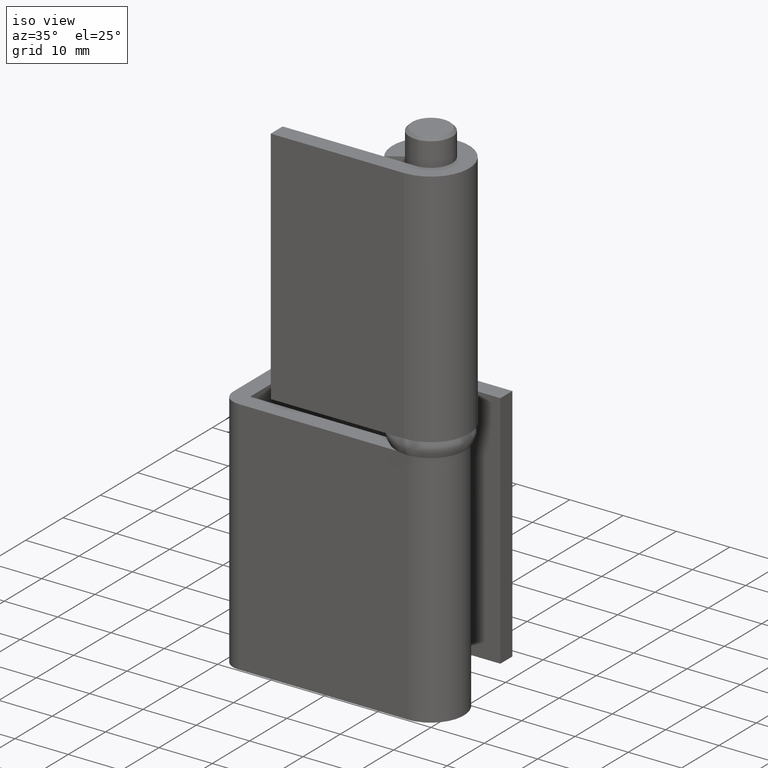
[diagram: clean part render]
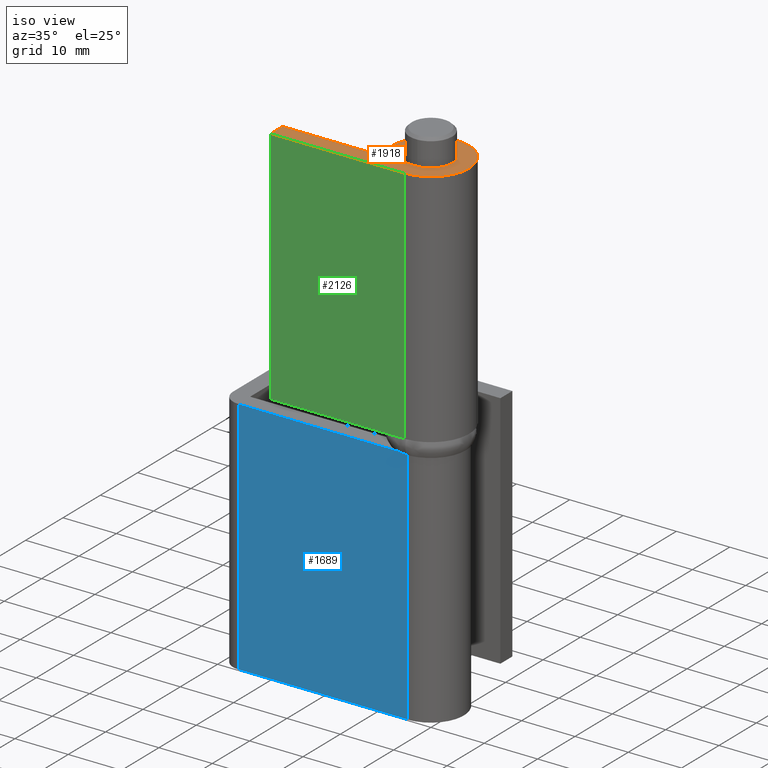
[diagram: same view with three faces highlighted in distinct colors, each labeled with its STEP entity id]
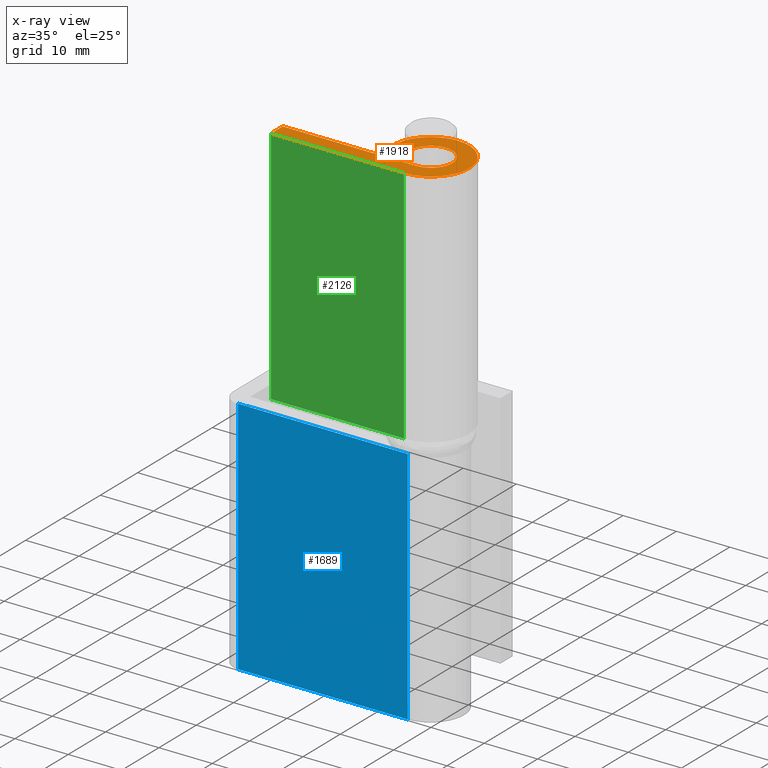
[diagram: x-ray of the same camera — body ghosted, the three highlighted faces saturated]
A machine part, iso view with three faces highlighted in distinct colors.
The next image is the same camera in x-ray (body ghosted, the three faces saturated) — at least one of them is partly hidden behind the body in this view.
Their STEP definitions:

[orange] entity #1918 — the highlighted face is a freeform B-spline surface patch.
#1841=CARTESIAN_POINT('',(-26.608327109650130,7.914607817437846,95.0));
#1842=CARTESIAN_POINT('',(8.807070156621938,7.914607817437846,95.0));
#1843=CARTESIAN_POINT('',(-26.608327109650130,-7.919039230234372,95.0));
#1844=CARTESIAN_POINT('',(8.807070156621938,-7.919039230234372,95.0));
#1845=B_SPLINE_SURFACE_WITH_KNOTS('',1,1,((#1841,#1843),(#1842,#1844)),.UNSPECIFIED.,.F.,.F.,.U.,(2,2),(2,2),(0.0,35.415397266272073),(0.0,15.833647047672221),.UNSPECIFIED.);
#1846=CARTESIAN_POINT('',(0.016099679385885,-7.199981999999999,95.0));
#1847=VERTEX_POINT('',#1846);
#1848=CARTESIAN_POINT('',(-25.0,-7.199981999999999,95.0));
#1849=VERTEX_POINT('',#1848);
#1850=CARTESIAN_POINT('',(0.016099679385885,-7.199981999999999,95.0));
#1851=CARTESIAN_POINT('',(-25.0,-7.199981999999999,95.0));
#1852=QUASI_UNIFORM_CURVE('',1,(#1850,#1851),.UNSPECIFIED.,.F.,.U.);
#1853=EDGE_CURVE('',#1847,#1849,#1852,.T.);
#1854=ORIENTED_EDGE('',*,*,#1853,.F.);
#1855=CARTESIAN_POINT('',(-6.019759131393890,-3.950000000000000,95.0));
#1856=VERTEX_POINT('',#1855);
#1857=CARTESIAN_POINT('',(0.016099679385891,-7.199981999999977,95.0));
#1858=CARTESIAN_POINT('',(5.619711671385884,-7.187451919164481,94.999999999999986));
#1859=CARTESIAN_POINT('',(6.983507910902554,-1.752317681917705,95.0));
#1860=CARTESIAN_POINT('',(8.347304150419223,3.682816555329068,94.999999999999986));
#1861=CARTESIAN_POINT('',(3.413440706091469,6.339433929460719,95.0));
#1862=CARTESIAN_POINT('',(-1.520422738236291,8.996051303592372,94.999999999999986));
#1863=CARTESIAN_POINT('',(-5.307196678162781,4.865558901020306,95.0));
#1864=CARTESIAN_POINT('',(-9.093970618089267,0.735066498448246,94.999999999999986));
#1865=CARTESIAN_POINT('',(-6.019759131393885,-3.949999999999992,95.0));
#1873=(BOUNDED_CURVE()B_SPLINE_CURVE(2,(#1857,#1858,#1859,#1860,#1861,#1862,#1863,#1864,#1865),.UNSPECIFIED.,.F.,.U.)B_SPLINE_CURVE_WITH_KNOTS((3,2,2,2,3),(0.0,0.250000000000000,0.500000000000000,0.750000000000000,1.0),.UNSPECIFIED.)CURVE()GEOMETRIC_REPRESENTATION_ITEM()RATIONAL_B_SPLINE_CURVE((1.0,0.789159578012154,1.0,0.789159578012154,1.0,0.789159578012154,1.0,0.789159578012154,1.0))REPRESENTATION_ITEM(''));
#1874=EDGE_CURVE('',#1847,#1856,#1873,.T.);
#1875=ORIENTED_EDGE('',*,*,#1874,.T.);
#1876=CARTESIAN_POINT('',(-3.344310628552160,-2.194444444444440,95.0));
#1877=VERTEX_POINT('',#1876);
#1878=CARTESIAN_POINT('',(-3.344310628552160,-2.194444444444440,95.0));
#1879=CARTESIAN_POINT('',(-6.019759131393890,-3.950000000000000,95.0));
#1880=QUASI_UNIFORM_CURVE('',1,(#1878,#1879),.UNSPECIFIED.,.F.,.U.);
#1881=EDGE_CURVE('',#1877,#1856,#1880,.T.);
#1882=ORIENTED_EDGE('',*,*,#1881,.F.);
#1883=CARTESIAN_POINT('',(4.898425E-016,-4.0,95.0));
#1884=VERTEX_POINT('',#1883);
#1885=CARTESIAN_POINT('',(0.0,-4.0,95.0));
#1886=CARTESIAN_POINT('',(3.114921198870250,-4.0,95.0));
#1887=CARTESIAN_POINT('',(3.878088536119432,-0.980014951936472,95.0));
#1888=CARTESIAN_POINT('',(4.641255873368612,2.039970096127055,95.0));
#1889=CARTESIAN_POINT('',(1.900292375165234,3.519785346990477,95.0));
#1890=CARTESIAN_POINT('',(-0.840671123038144,4.999600597853898,95.0));
#1891=CARTESIAN_POINT('',(-2.946931065763030,2.704736085765259,95.0));
#1892=CARTESIAN_POINT('',(-5.053191008487919,0.409871573676618,95.0));
#1893=CARTESIAN_POINT('',(-3.344310628552161,-2.194444444444437,95.0));
#1901=(BOUNDED_CURVE()B_SPLINE_CURVE(2,(#1885,#1886,#1887,#1888,#1889,#1890,#1891,#1892,#1893),.UNSPECIFIED.,.F.,.U.)B_SPLINE_CURVE_WITH_KNOTS((3,2,2,2,3),(0.0,0.250000000000000,0.500000000000000,0.750000000000000,1.0),.UNSPECIFIED.)CURVE()GEOMETRIC_REPRESENTATION_ITEM()RATIONAL_B_SPLINE_CURVE((1.0,0.788987876327678,1.0,0.788987876327678,1.0,0.788987876327678,1.0,0.788987876327678,1.0))REPRESENTATION_ITEM(''));
#1902=EDGE_CURVE('',#1884,#1877,#1901,.T.);
#1903=ORIENTED_EDGE('',*,*,#1902,.F.);
#1904=CARTESIAN_POINT('',(-25.0,-4.0,95.0));
#1905=VERTEX_POINT('',#1904);
#1906=CARTESIAN_POINT('',(-25.0,-4.0,95.0));
#1907=CARTESIAN_POINT('',(4.898425E-016,-4.0,95.0));
#1908=QUASI_UNIFORM_CURVE('',1,(#1906,#1907),.UNSPECIFIED.,.F.,.U.);
#1909=EDGE_CURVE('',#1905,#1884,#1908,.T.);
#1910=ORIENTED_EDGE('',*,*,#1909,.F.);
#1911=CARTESIAN_POINT('',(-25.0,-7.199981999999999,95.0));
#1912=CARTESIAN_POINT('',(-25.0,-4.0,95.0));
#1913=QUASI_UNIFORM_CURVE('',1,(#1911,#1912),.UNSPECIFIED.,.F.,.U.);
#1914=EDGE_CURVE('',#1849,#1905,#1913,.T.);
#1915=ORIENTED_EDGE('',*,*,#1914,.F.);
#1916=EDGE_LOOP('',(#1854,#1875,#1882,#1903,#1910,#1915));
#1917=FACE_OUTER_BOUND('',#1916,.T.);
#1918=ADVANCED_FACE('',(#1917),#1845,.F.);

[blue] entity #1689 — the highlighted face is a freeform B-spline surface patch.
#1340=CARTESIAN_POINT('',(0.0,-6.199997000000000,2.0));
#1341=VERTEX_POINT('',#1340);
#1361=CARTESIAN_POINT('',(-31.800003167551608,-6.200000000000000,2.0));
#1362=VERTEX_POINT('',#1361);
#1363=CARTESIAN_POINT('',(-31.800003167551608,-6.200000000000000,2.0));
#1364=CARTESIAN_POINT('',(0.0,-6.199997000000000,2.0));
#1365=QUASI_UNIFORM_CURVE('',1,(#1363,#1364),.UNSPECIFIED.,.F.,.U.);
#1366=EDGE_CURVE('',#1362,#1341,#1365,.T.);
#1470=CARTESIAN_POINT('',(-31.800003167551608,-6.200000000000000,47.0));
#1471=VERTEX_POINT('',#1470);
#1485=CARTESIAN_POINT('',(0.0,-6.199997000000000,47.0));
#1486=VERTEX_POINT('',#1485);
#1487=CARTESIAN_POINT('',(-31.800003167551608,-6.200000000000000,47.0));
#1488=CARTESIAN_POINT('',(0.0,-6.199997000000000,47.0));
#1489=QUASI_UNIFORM_CURVE('',1,(#1487,#1488),.UNSPECIFIED.,.F.,.U.);
#1490=EDGE_CURVE('',#1471,#1486,#1489,.T.);
#1666=CARTESIAN_POINT('',(0.0,-6.199997000000000,47.0));
#1667=CARTESIAN_POINT('',(0.0,-6.199997000000000,2.0));
#1668=QUASI_UNIFORM_CURVE('',1,(#1666,#1667),.UNSPECIFIED.,.F.,.U.);
#1669=EDGE_CURVE('',#1486,#1341,#1668,.T.);
#1674=CARTESIAN_POINT('',(-33.388413264136240,-6.199997000000000,-0.247749912781268));
#1675=CARTESIAN_POINT('',(-33.388413264136240,-6.199997000000000,49.247751119775337));
#1676=CARTESIAN_POINT('',(1.588410949527177,-6.199997000000000,-0.247749912781268));
#1677=CARTESIAN_POINT('',(1.588410949527177,-6.199997000000000,49.247751119775337));
#1678=B_SPLINE_SURFACE_WITH_KNOTS('',1,1,((#1674,#1676),(#1675,#1677)),.UNSPECIFIED.,.F.,.F.,.U.,(2,2),(2,2),(0.0,49.495501032556596),(0.0,34.976824213663420),.UNSPECIFIED.);
#1679=ORIENTED_EDGE('',*,*,#1366,.T.);
#1680=ORIENTED_EDGE('',*,*,#1669,.F.);
#1681=ORIENTED_EDGE('',*,*,#1490,.F.);
#1682=CARTESIAN_POINT('',(-31.800003167551608,-6.200000000000000,47.0));
#1683=CARTESIAN_POINT('',(-31.800003167551608,-6.200000000000000,2.0));
#1684=QUASI_UNIFORM_CURVE('',1,(#1682,#1683),.UNSPECIFIED.,.F.,.U.);
#1685=EDGE_CURVE('',#1471,#1362,#1684,.T.);
#1686=ORIENTED_EDGE('',*,*,#1685,.T.);
#1687=EDGE_LOOP('',(#1679,#1680,#1681,#1686));
#1688=FACE_OUTER_BOUND('',#1687,.T.);
#1689=ADVANCED_FACE('',(#1688),#1678,.F.);

[green] entity #2126 — the highlighted face is a freeform B-spline surface patch.
#1846=CARTESIAN_POINT('',(0.016099679385885,-7.199981999999999,95.0));
#1847=VERTEX_POINT('',#1846);
#1848=CARTESIAN_POINT('',(-25.0,-7.199981999999999,95.0));
#1849=VERTEX_POINT('',#1848);
#1850=CARTESIAN_POINT('',(0.016099679385885,-7.199981999999999,95.0));
#1851=CARTESIAN_POINT('',(-25.0,-7.199981999999999,95.0));
#1852=QUASI_UNIFORM_CURVE('',1,(#1850,#1851),.UNSPECIFIED.,.F.,.U.);
#1853=EDGE_CURVE('',#1847,#1849,#1852,.T.);
#1924=CARTESIAN_POINT('',(0.016099679385885,-7.199981999999999,50.0));
#1925=VERTEX_POINT('',#1924);
#1926=CARTESIAN_POINT('',(-25.0,-7.199981999999999,50.0));
#1927=VERTEX_POINT('',#1926);
#1928=CARTESIAN_POINT('',(0.016099679385885,-7.199981999999999,50.0));
#1929=CARTESIAN_POINT('',(-25.0,-7.199981999999999,50.0));
#1930=QUASI_UNIFORM_CURVE('',1,(#1928,#1929),.UNSPECIFIED.,.F.,.U.);
#1931=EDGE_CURVE('',#1925,#1927,#1930,.T.);
#2020=CARTESIAN_POINT('',(0.016099679385885,-7.199981999999999,50.0));
#2021=CARTESIAN_POINT('',(0.016099679385885,-7.199981999999999,95.0));
#2022=QUASI_UNIFORM_CURVE('',1,(#2020,#2021),.UNSPECIFIED.,.F.,.U.);
#2023=EDGE_CURVE('',#1925,#1847,#2022,.T.);
#2107=CARTESIAN_POINT('',(-25.0,-7.199981999999999,50.0));
#2108=CARTESIAN_POINT('',(-25.0,-7.199981999999999,95.0));
#2109=QUASI_UNIFORM_CURVE('',1,(#2107,#2108),.UNSPECIFIED.,.F.,.U.);
#2110=EDGE_CURVE('',#1927,#1849,#2109,.T.);
#2115=CARTESIAN_POINT('',(-26.249554130499270,-7.199981999999999,47.752250087218727));
#2116=CARTESIAN_POINT('',(-26.249554130499270,-7.199981999999999,97.247751119775316));
#2117=CARTESIAN_POINT('',(1.265654480869235,-7.199981999999999,47.752250087218727));
#2118=CARTESIAN_POINT('',(1.265654480869235,-7.199981999999999,97.247751119775316));
#2119=B_SPLINE_SURFACE_WITH_KNOTS('',1,1,((#2115,#2117),(#2116,#2118)),.UNSPECIFIED.,.F.,.F.,.U.,(2,2),(2,2),(0.0,49.495501032556582),(0.0,27.515208611368500),.UNSPECIFIED.);
#2120=ORIENTED_EDGE('',*,*,#1853,.T.);
#2121=ORIENTED_EDGE('',*,*,#2110,.F.);
#2122=ORIENTED_EDGE('',*,*,#1931,.F.);
#2123=ORIENTED_EDGE('',*,*,#2023,.T.);
#2124=EDGE_LOOP('',(#2120,#2121,#2122,#2123));
#2125=FACE_OUTER_BOUND('',#2124,.T.);
#2126=ADVANCED_FACE('',(#2125),#2119,.F.);